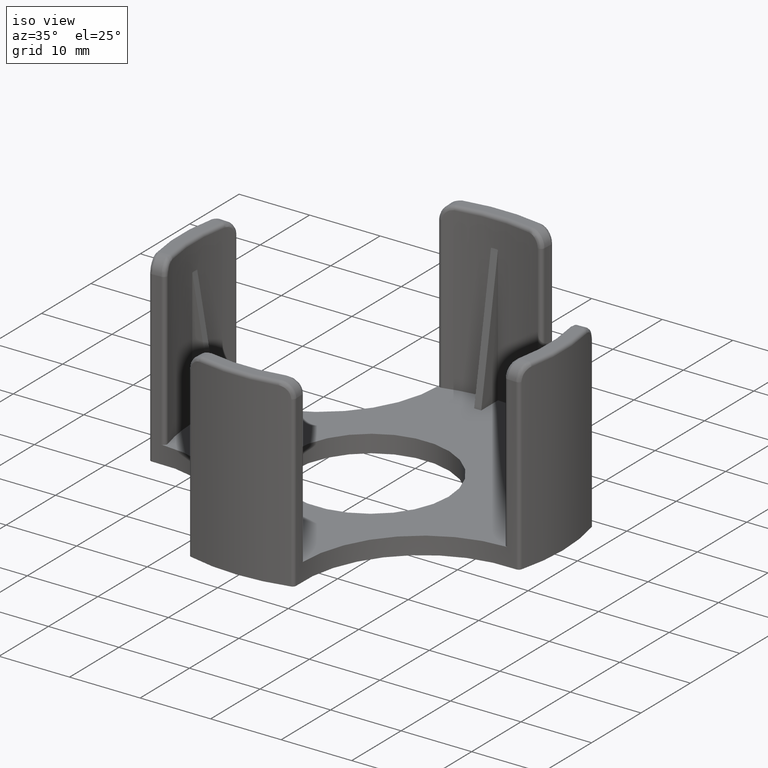
[diagram: clean part render]
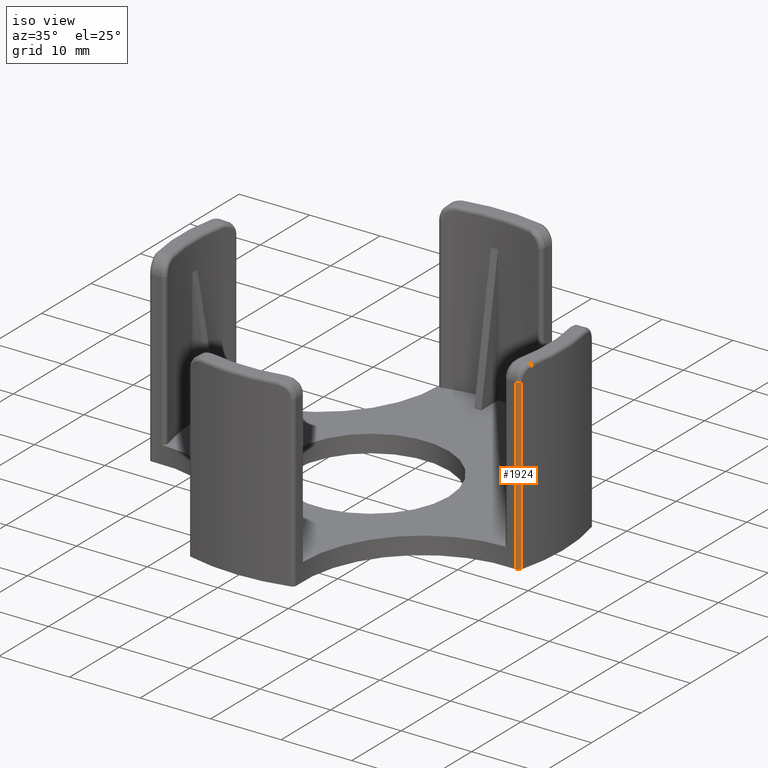
[diagram: same view with one face highlighted and labeled with its STEP entity id]
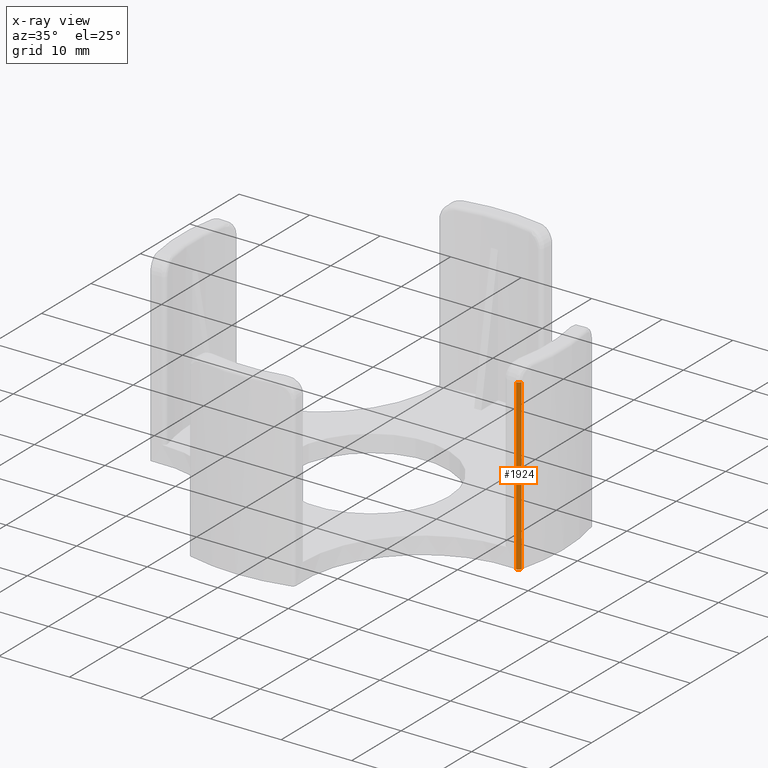
[diagram: x-ray of the same camera — body ghosted, the highlighted face saturated]
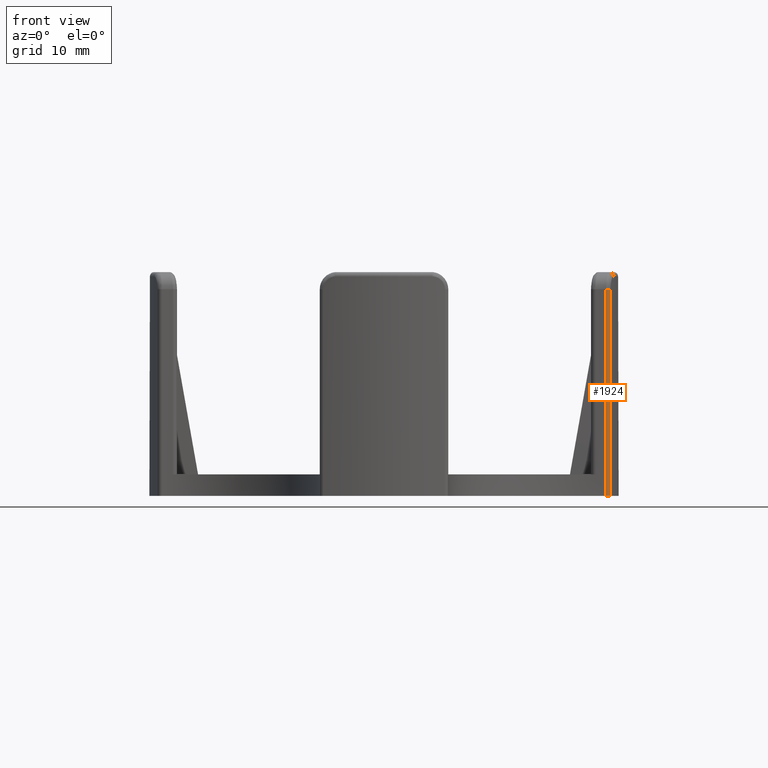
[diagram: same view with one face highlighted and labeled with its STEP entity id]
A machine part, iso view. The second image highlights one B-rep face of the part: STEP entity #1924.
The next image is the same camera in x-ray: the body ghosted, the highlighted face saturated — about 0% of this face is hidden behind the body in this view.
A second angle (front view) of the same face is appended — the face is thin or edge-on in the first view.
In plain terms, the highlighted cylindrical surface (edge-blend (fillet) strip) has radius 0.5 mm, axis along (0, 0, 1).
Its self-contained STEP definition (entity closure, byte-faithful):
#1853=CARTESIAN_POINT('',(27.063291273486524,-8.238502637720970,24.0));
#1854=VERTEX_POINT('',#1853);
#1868=CARTESIAN_POINT('',(27.586699435524125,-7.870310111331229,24.0));
#1869=VERTEX_POINT('',#1868);
#1870=CARTESIAN_POINT('',(27.103936274480603,-7.740157392038634,24.0));
#1871=DIRECTION('',(0.0,0.0,1.0));
#1872=DIRECTION('',(-0.081290001988164,-0.996690491364679,0.0));
#1873=AXIS2_PLACEMENT_3D('',#1870,#1871,#1872);
#1874=CIRCLE('',#1873,0.499999999999997);
#1875=EDGE_CURVE('',#1854,#1869,#1874,.T.);
#1893=CARTESIAN_POINT('',(27.103936274480603,-7.740157392038627,0.0));
#1894=DIRECTION('',(0.0,0.0,1.0));
#1895=DIRECTION('',(0.575355719476886,-0.817903292611807,0.0));
#1896=AXIS2_PLACEMENT_3D('',#1893,#1894,#1895);
#1897=CYLINDRICAL_SURFACE('',#1896,0.500000000000000);
#1898=CARTESIAN_POINT('',(27.063291273486520,-8.238502637720966,0.0));
#1899=VERTEX_POINT('',#1898);
#1900=CARTESIAN_POINT('',(27.586699435524132,-7.870310111331225,0.0));
#1901=VERTEX_POINT('',#1900);
#1902=CARTESIAN_POINT('',(27.103936274480603,-7.740157392038627,0.0));
#1903=DIRECTION('',(0.0,0.0,1.0));
#1904=DIRECTION('',(0.575355719476886,-0.817903292611807,0.0));
#1905=AXIS2_PLACEMENT_3D('',#1902,#1903,#1904);
#1906=CIRCLE('',#1905,0.500000000000000);
#1907=EDGE_CURVE('',#1899,#1901,#1906,.T.);
#1908=ORIENTED_EDGE('',*,*,#1907,.T.);
#1909=CARTESIAN_POINT('',(27.586699435524132,-7.870310111331225,0.0));
#1910=DIRECTION('',(0.0,0.0,1.0));
#1911=VECTOR('',#1910,24.0);
#1912=LINE('',#1909,#1911);
#1913=EDGE_CURVE('',#1901,#1869,#1912,.T.);
#1914=ORIENTED_EDGE('',*,*,#1913,.T.);
#1915=ORIENTED_EDGE('',*,*,#1875,.F.);
#1916=CARTESIAN_POINT('',(27.063291273486524,-8.238502637720970,24.0));
#1917=DIRECTION('',(0.0,0.0,-1.0));
#1918=VECTOR('',#1917,24.0);
#1919=LINE('',#1916,#1918);
#1920=EDGE_CURVE('',#1854,#1899,#1919,.T.);
#1921=ORIENTED_EDGE('',*,*,#1920,.T.);
#1922=EDGE_LOOP('',(#1908,#1914,#1915,#1921));
#1923=FACE_OUTER_BOUND('',#1922,.T.);
#1924=ADVANCED_FACE('',(#1923),#1897,.T.);